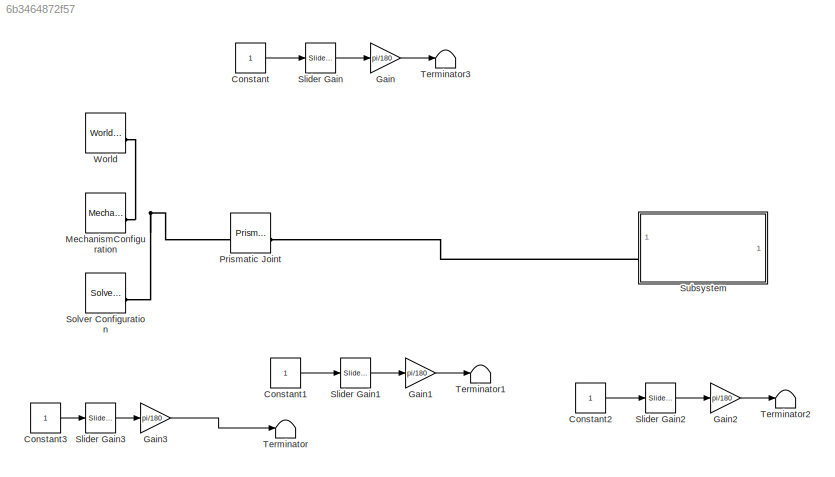
MODEL slx_6b3464872f57
KIND model
CONFIG AbsTol = auto
CONFIG EnableMultiTasking = off
CONFIG FixedStep = auto
CONFIG MaxStep = auto
CONFIG MinStep = auto
CONFIG RelTol = 1e-3
CONFIG SampleTimeConstraint = Unconstrained
CONFIG SolverName = VariableStepAuto
CONFIG StartTime = 0.0
CONFIG StopTime = 10.0
BLOCK [Constant] Constant
BLOCK [Constant] Constant1
BLOCK [Constant] Constant2
BLOCK [Constant] Constant3
BLOCK [Gain] Gain
  Gain = pi/180
BLOCK [Gain] Gain1
  Gain = pi/180
BLOCK [Gain] Gain2
  Gain = pi/180
BLOCK [Gain] Gain3
  Gain = pi/180
BLOCK [Reference] MechanismConfiguration  REF=sm_lib/Utilities/Mechanism
Configuration
  SourceBlock = sm_lib/Utilities/Mechanism\nConfiguration
  SourceType = Mechanism\nConfiguration
BLOCK [Reference] Prismatic Joint  REF=sm_lib/Joints/Prismatic
Joint
  SourceBlock = sm_lib/Joints/Prismatic\nJoint
  SourceType = Prismatic\nJoint
BLOCK [Reference] Slider Gain  REF=simulink/Math
Operations/Slider
Gain
  SourceBlock = simulink/Math\nOperations/Slider\nGain
  SourceType = Slider Gain
BLOCK [Reference] Slider Gain1  REF=simulink/Math
Operations/Slider
Gain
  SourceBlock = simulink/Math\nOperations/Slider\nGain
  SourceType = Slider Gain
BLOCK [Reference] Slider Gain2  REF=simulink/Math
Operations/Slider
Gain
  SourceBlock = simulink/Math\nOperations/Slider\nGain
  SourceType = Slider Gain
BLOCK [Reference] Slider Gain3  REF=simulink/Math
Operations/Slider
Gain
  SourceBlock = simulink/Math\nOperations/Slider\nGain
  SourceType = Slider Gain
BLOCK [Reference] Solver Configuration  REF=nesl_utility/Solver
Configuration
  SourceBlock = nesl_utility/Solver\nConfiguration
  SourceType = Solver\nConfiguration
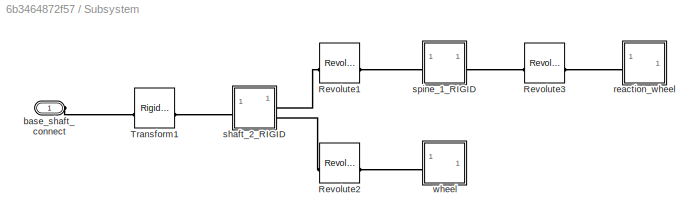
BLOCK [SubSystem] Subsystem
BLOCK [Reference] Subsystem/Revolute1  REF=sm_lib/Joints/Revolute Joint
  SourceBlock = sm_lib/Joints/Revolute Joint
  SourceType = Revolute Joint
BLOCK [Reference] Subsystem/Revolute2  REF=sm_lib/Joints/Revolute Joint
  SourceBlock = sm_lib/Joints/Revolute Joint
  SourceType = Revolute Joint
BLOCK [Reference] Subsystem/Revolute3  REF=sm_lib/Joints/Revolute Joint
  SourceBlock = sm_lib/Joints/Revolute Joint
  SourceType = Revolute Joint
BLOCK [Reference] Subsystem/Transform1  REF=sm_lib/Frames and
Transforms/Rigid
Transform
  SourceBlock = sm_lib/Frames and\nTransforms/Rigid\nTransform
  SourceType = Rigid\nTransform
BLOCK [PMIOPort] Subsystem/base_shaft_connect
  Side = Left
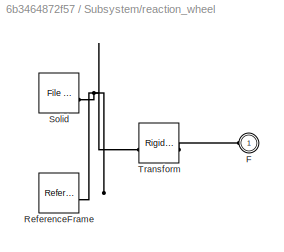
BLOCK [SubSystem] Subsystem/reaction_wheel
BLOCK [PMIOPort] Subsystem/reaction_wheel/F
  Side = Left
BLOCK [Reference] Subsystem/reaction_wheel/ReferenceFrame  REF=sm_lib/Frames and
Transforms/Reference
Frame
  SourceBlock = sm_lib/Frames and\nTransforms/Reference\nFrame
  SourceType = Reference\nFrame
BLOCK [Reference] Subsystem/reaction_wheel/Solid  REF=sm_lib/Body Elements/File Solid
  SourceBlock = sm_lib/Body Elements/File Solid
  SourceType = File Solid
BLOCK [Reference] Subsystem/reaction_wheel/Transform  REF=sm_lib/Frames and
Transforms/Rigid
Transform
  SourceBlock = sm_lib/Frames and\nTransforms/Rigid\nTransform
  SourceType = Rigid\nTransform
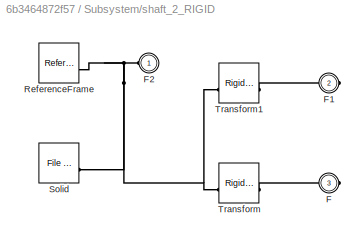
BLOCK [SubSystem] Subsystem/shaft_2_RIGID
BLOCK [PMIOPort] Subsystem/shaft_2_RIGID/F
  Port = 3
  Side = Right
BLOCK [PMIOPort] Subsystem/shaft_2_RIGID/F1
  Port = 2
  Side = Right
BLOCK [PMIOPort] Subsystem/shaft_2_RIGID/F2
  Side = Left
BLOCK [Reference] Subsystem/shaft_2_RIGID/ReferenceFrame  REF=sm_lib/Frames and
Transforms/Reference
Frame
  SourceBlock = sm_lib/Frames and\nTransforms/Reference\nFrame
  SourceType = Reference\nFrame
BLOCK [Reference] Subsystem/shaft_2_RIGID/Solid  REF=sm_lib/Body Elements/File Solid
  SourceBlock = sm_lib/Body Elements/File Solid
  SourceType = File Solid
BLOCK [Reference] Subsystem/shaft_2_RIGID/Transform  REF=sm_lib/Frames and
Transforms/Rigid
Transform
  SourceBlock = sm_lib/Frames and\nTransforms/Rigid\nTransform
  SourceType = Rigid\nTransform
BLOCK [Reference] Subsystem/shaft_2_RIGID/Transform1  REF=sm_lib/Frames and
Transforms/Rigid
Transform
  SourceBlock = sm_lib/Frames and\nTransforms/Rigid\nTransform
  SourceType = Rigid\nTransform
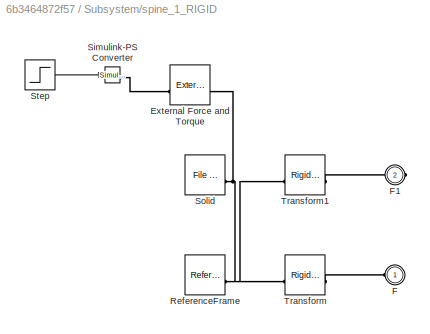
BLOCK [SubSystem] Subsystem/spine_1_RIGID
BLOCK [Reference] Subsystem/spine_1_RIGID/External Force and Torque  REF=sm_lib/Forces and
Torques/External Force
and Torque
  SourceBlock = sm_lib/Forces and\nTorques/External Force\nand Torque
  SourceType = External Force\nand Torque
BLOCK [PMIOPort] Subsystem/spine_1_RIGID/F
  Side = Left
BLOCK [PMIOPort] Subsystem/spine_1_RIGID/F1
  Port = 2
  Side = Right
BLOCK [Reference] Subsystem/spine_1_RIGID/ReferenceFrame  REF=sm_lib/Frames and
Transforms/Reference
Frame
  SourceBlock = sm_lib/Frames and\nTransforms/Reference\nFrame
  SourceType = Reference\nFrame
BLOCK [Reference] Subsystem/spine_1_RIGID/Simulink-PS Converter  REF=nesl_utility/Simulink-PS
Converter
  SourceBlock = nesl_utility/Simulink-PS\nConverter
  SourceType = Simulink-PS\nConverter
BLOCK [Reference] Subsystem/spine_1_RIGID/Solid  REF=sm_lib/Body Elements/File Solid
  SourceBlock = sm_lib/Body Elements/File Solid
  SourceType = File Solid
BLOCK [Step] Subsystem/spine_1_RIGID/Step
  SampleTime = 0
  Time = 0.01
BLOCK [Reference] Subsystem/spine_1_RIGID/Transform  REF=sm_lib/Frames and
Transforms/Rigid
Transform
  SourceBlock = sm_lib/Frames and\nTransforms/Rigid\nTransform
  SourceType = Rigid\nTransform
BLOCK [Reference] Subsystem/spine_1_RIGID/Transform1  REF=sm_lib/Frames and
Transforms/Rigid
Transform
  SourceBlock = sm_lib/Frames and\nTransforms/Rigid\nTransform
  SourceType = Rigid\nTransform
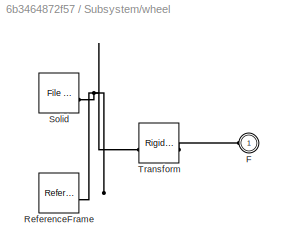
BLOCK [SubSystem] Subsystem/wheel
BLOCK [PMIOPort] Subsystem/wheel/F
  Side = Left
BLOCK [Reference] Subsystem/wheel/ReferenceFrame  REF=sm_lib/Frames and
Transforms/Reference
Frame
  SourceBlock = sm_lib/Frames and\nTransforms/Reference\nFrame
  SourceType = Reference\nFrame
BLOCK [Reference] Subsystem/wheel/Solid  REF=sm_lib/Body Elements/File Solid
  SourceBlock = sm_lib/Body Elements/File Solid
  SourceType = File Solid
BLOCK [Reference] Subsystem/wheel/Transform  REF=sm_lib/Frames and
Transforms/Rigid
Transform
  SourceBlock = sm_lib/Frames and\nTransforms/Rigid\nTransform
  SourceType = Rigid\nTransform
BLOCK [Terminator] Terminator
BLOCK [Terminator] Terminator1
BLOCK [Terminator] Terminator2
BLOCK [Terminator] Terminator3
BLOCK [Reference] World  REF=sm_lib/Frames and
Transforms/World Frame
  SourceBlock = sm_lib/Frames and\nTransforms/World Frame
  SourceType = World Frame
LINE Constant1:1 -> Slider Gain1:1
LINE Constant2:1 -> Slider Gain2:1
LINE Constant3:1 -> Slider Gain3:1
LINE Constant:1 -> Slider Gain:1
LINE Gain1:1 -> Terminator1:1
LINE Gain2:1 -> Terminator2:1
LINE Gain3:1 -> Terminator:1
LINE Gain:1 -> Terminator3:1
LINE Slider Gain1:1 -> Gain1:1
LINE Slider Gain2:1 -> Gain2:1
LINE Slider Gain3:1 -> Gain3:1
LINE Slider Gain:1 -> Gain:1
LINE Subsystem/spine_1_RIGID/Step:1 -> Subsystem/spine_1_RIGID/Simulink-PS Converter:1
PNET net1: MechanismConfiguration:RConn1 -- Prismatic Joint:LConn1 -- Solver Configuration:RConn1 -- World:RConn1
PLINE Prismatic Joint:RConn1 -- Subsystem:LConn1
PLINE Subsystem/Revolute1:LConn1 -- Subsystem/shaft_2_RIGID:RConn1
PLINE Subsystem/Revolute1:RConn1 -- Subsystem/spine_1_RIGID:LConn1
PLINE Subsystem/Revolute2:LConn1 -- Subsystem/shaft_2_RIGID:RConn2
PLINE Subsystem/Revolute2:RConn1 -- Subsystem/wheel:LConn1
PLINE Subsystem/Revolute3:LConn1 -- Subsystem/spine_1_RIGID:RConn1
PLINE Subsystem/Revolute3:RConn1 -- Subsystem/reaction_wheel:LConn1
PLINE Subsystem/Transform1:LConn1 -- Subsystem/base_shaft_connect:RConn1
PLINE Subsystem/Transform1:RConn1 -- Subsystem/shaft_2_RIGID:LConn1
PLINE Subsystem/reaction_wheel/F:RConn1 -- Subsystem/reaction_wheel/Transform:RConn1
PNET net2: Subsystem/reaction_wheel/ReferenceFrame:RConn1 -- Subsystem/reaction_wheel/Solid:RConn1 -- Subsystem/reaction_wheel/Transform:LConn1
PLINE Subsystem/shaft_2_RIGID/F1:RConn1 -- Subsystem/shaft_2_RIGID/Transform1:RConn1
PNET net3: Subsystem/shaft_2_RIGID/F2:RConn1 -- Subsystem/shaft_2_RIGID/ReferenceFrame:RConn1 -- Subsystem/shaft_2_RIGID/Solid:RConn1 -- Subsystem/shaft_2_RIGID/Transform1:LConn1 -- Subsystem/shaft_2_RIGID/Transform:LConn1
PLINE Subsystem/shaft_2_RIGID/F:RConn1 -- Subsystem/shaft_2_RIGID/Transform:RConn1
PLINE Subsystem/spine_1_RIGID/External Force and Torque:LConn1 -- Subsystem/spine_1_RIGID/Simulink-PS Converter:RConn1
PNET net4: Subsystem/spine_1_RIGID/External Force and Torque:RConn1 -- Subsystem/spine_1_RIGID/ReferenceFrame:RConn1 -- Subsystem/spine_1_RIGID/Solid:RConn1 -- Subsystem/spine_1_RIGID/Transform1:LConn1 -- Subsystem/spine_1_RIGID/Transform:LConn1
PLINE Subsystem/spine_1_RIGID/F1:RConn1 -- Subsystem/spine_1_RIGID/Transform1:RConn1
PLINE Subsystem/spine_1_RIGID/F:RConn1 -- Subsystem/spine_1_RIGID/Transform:RConn1
PLINE Subsystem/wheel/F:RConn1 -- Subsystem/wheel/Transform:RConn1
PNET net5: Subsystem/wheel/ReferenceFrame:RConn1 -- Subsystem/wheel/Solid:RConn1 -- Subsystem/wheel/Transform:LConn1
note: PNET lines group multi-terminal physical nets as a canonical sorted terminal list (undirected conserving connections); 2-terminal nets keep the pairwise PLINE form
